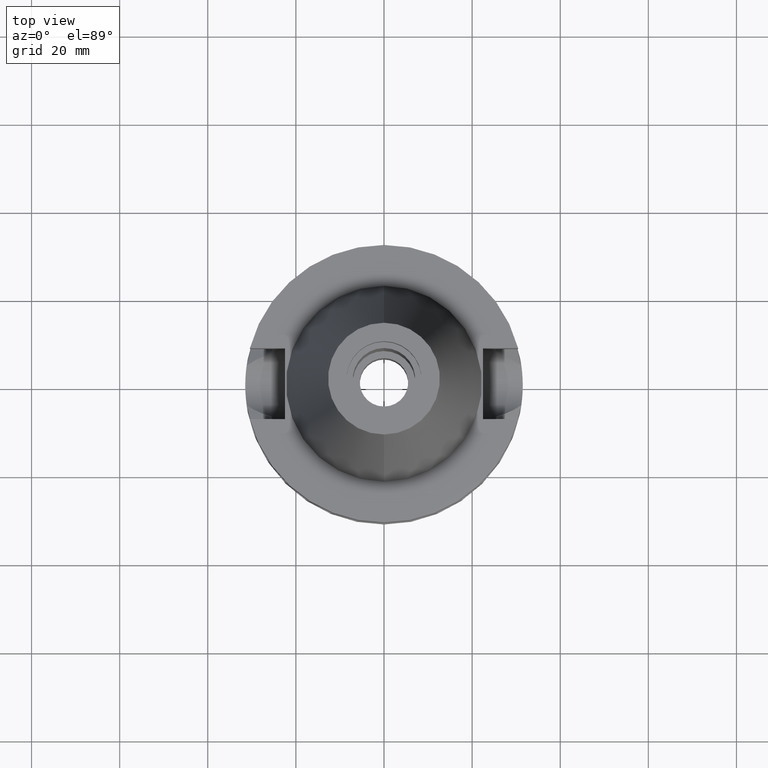
[diagram: clean part render]
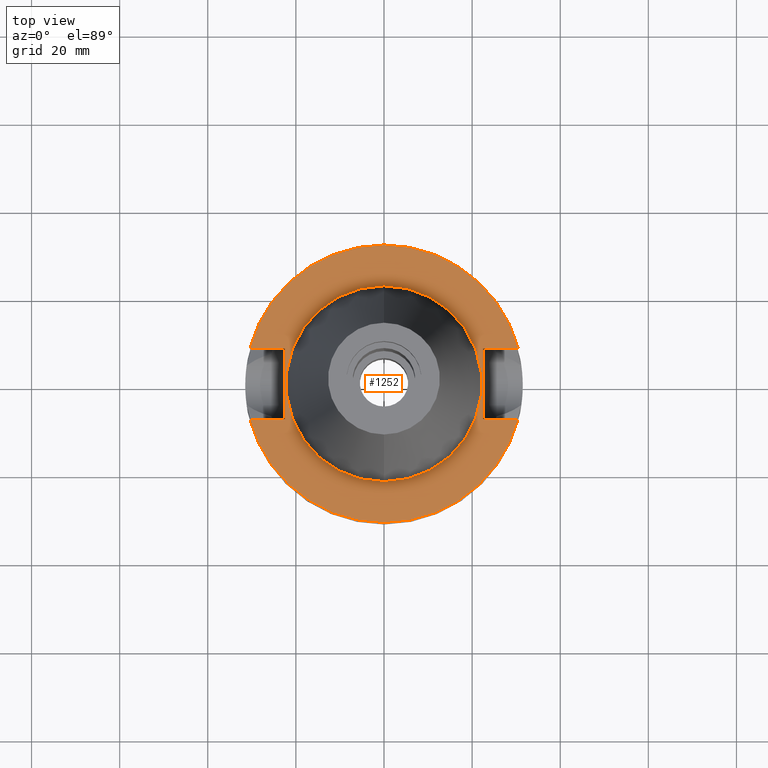
[diagram: same view with one face highlighted and labeled with its STEP entity id]
A machine part, top view. The second image highlights one B-rep face of the part: STEP entity #1252.
In plain terms, the highlighted planar face has unit normal (0, 0, -1).
Its self-contained STEP definition (entity closure, byte-faithful):
#94=DIRECTION('',(0.E0,1.E0,0.E0));
#95=VECTOR('',#94,1.61E1);
#96=CARTESIAN_POINT('',(-2.25E1,-8.05E0,-1.E0));
#97=LINE('',#96,#95);
#101=DIRECTION('',(-1.E0,-3.550916904668E-14,0.E0));
#102=VECTOR('',#101,7.954022722788E0);
#103=CARTESIAN_POINT('',(-2.25E1,8.05E0,-1.E0));
#104=LINE('',#103,#102);
#108=CARTESIAN_POINT('',(0.E0,2.111352314070E-14,-1.E0));
#109=DIRECTION('',(0.E0,0.E0,-1.E0));
#110=DIRECTION('',(-9.667943721520E-1,2.555555555556E-1,0.E0));
#111=AXIS2_PLACEMENT_3D('',#108,#109,#110);
#116=CARTESIAN_POINT('',(0.E0,2.111352314070E-14,-1.E0));
#117=DIRECTION('',(0.E0,0.E0,-1.E0));
#118=DIRECTION('',(0.E0,1.E0,0.E0));
#119=AXIS2_PLACEMENT_3D('',#116,#117,#118);
#124=DIRECTION('',(0.E0,-1.E0,0.E0));
#125=VECTOR('',#124,1.61E1);
#126=CARTESIAN_POINT('',(2.25E1,8.05E0,-1.E0));
#127=LINE('',#126,#125);
#131=DIRECTION('',(1.E0,3.573249715390E-14,0.E0));
#132=VECTOR('',#131,7.954022722788E0);
#133=CARTESIAN_POINT('',(2.25E1,-8.05E0,-1.E0));
#134=LINE('',#133,#132);
#138=CARTESIAN_POINT('',(0.E0,2.111352314070E-14,-1.E0));
#139=DIRECTION('',(0.E0,0.E0,-1.E0));
#140=DIRECTION('',(9.667943721520E-1,-2.555555555556E-1,0.E0));
#141=AXIS2_PLACEMENT_3D('',#138,#139,#140);
#146=CARTESIAN_POINT('',(0.E0,2.111352314070E-14,-1.E0));
#147=DIRECTION('',(0.E0,0.E0,-1.E0));
#148=DIRECTION('',(0.E0,-1.E0,0.E0));
#149=AXIS2_PLACEMENT_3D('',#146,#147,#148);
#154=CARTESIAN_POINT('',(0.E0,2.111352314070E-14,-1.E0));
#155=DIRECTION('',(0.E0,0.E0,1.E0));
#156=DIRECTION('',(0.E0,-1.E0,0.E0));
#157=AXIS2_PLACEMENT_3D('',#154,#155,#156);
#162=CARTESIAN_POINT('',(0.E0,2.111352314070E-14,-1.E0));
#163=DIRECTION('',(0.E0,0.E0,1.E0));
#164=DIRECTION('',(0.E0,1.E0,0.E0));
#165=AXIS2_PLACEMENT_3D('',#162,#163,#164);
#200=DIRECTION('',(-1.E0,3.550916904668E-14,0.E0));
#201=VECTOR('',#200,7.954022722788E0);
#202=CARTESIAN_POINT('',(-2.25E1,-8.05E0,-1.E0));
#203=LINE('',#202,#201);
#337=DIRECTION('',(1.E0,-3.506251283226E-14,0.E0));
#338=VECTOR('',#337,7.954022722788E0);
#339=CARTESIAN_POINT('',(2.25E1,8.05E0,-1.E0));
#340=LINE('',#339,#338);
#1109=CARTESIAN_POINT('',(-2.25E1,-8.05E0,-1.E0));
#1110=VERTEX_POINT('',#1109);
#1111=CARTESIAN_POINT('',(-3.045402272279E1,-8.05E0,-1.E0));
#1112=VERTEX_POINT('',#1111);
#1115=CARTESIAN_POINT('',(-2.25E1,8.05E0,-1.E0));
#1116=VERTEX_POINT('',#1115);
#1117=CARTESIAN_POINT('',(-3.045402272279E1,8.05E0,-1.E0));
#1118=VERTEX_POINT('',#1117);
#1119=CARTESIAN_POINT('',(-3.317447654708E-14,3.15E1,-1.E0));
#1120=CARTESIAN_POINT('',(3.045402272279E1,8.05E0,-1.E0));
#1121=VERTEX_POINT('',#1119);
#1122=VERTEX_POINT('',#1120);
#1123=CARTESIAN_POINT('',(2.25E1,8.05E0,-1.E0));
#1124=VERTEX_POINT('',#1123);
#1125=CARTESIAN_POINT('',(2.25E1,-8.05E0,-1.E0));
#1126=VERTEX_POINT('',#1125);
#1127=CARTESIAN_POINT('',(3.045402272279E1,-8.05E0,-1.E0));
#1128=VERTEX_POINT('',#1127);
#1129=CARTESIAN_POINT('',(3.317447654708E-14,-3.15E1,-1.E0));
#1130=VERTEX_POINT('',#1129);
#1131=CARTESIAN_POINT('',(0.E0,-2.2225E1,-1.E0));
#1132=CARTESIAN_POINT('',(0.E0,2.2225E1,-1.E0));
#1133=VERTEX_POINT('',#1131);
#1134=VERTEX_POINT('',#1132);
#1221=CARTESIAN_POINT('',(0.E0,1.212400331156E-14,-1.E0));
#1222=DIRECTION('',(0.E0,0.E0,-1.E0));
#1223=DIRECTION('',(0.E0,-1.E0,0.E0));
#1224=AXIS2_PLACEMENT_3D('',#1221,#1222,#1223);
#1225=PLANE('',#1224);
#1227=ORIENTED_EDGE('',*,*,#1226,.T.);
#1229=ORIENTED_EDGE('',*,*,#1228,.T.);
#1231=ORIENTED_EDGE('',*,*,#1230,.T.);
#1233=ORIENTED_EDGE('',*,*,#1232,.T.);
#1235=ORIENTED_EDGE('',*,*,#1234,.F.);
#1237=ORIENTED_EDGE('',*,*,#1236,.T.);
#1239=ORIENTED_EDGE('',*,*,#1238,.T.);
#1241=ORIENTED_EDGE('',*,*,#1240,.T.);
#1243=ORIENTED_EDGE('',*,*,#1242,.T.);
#1245=ORIENTED_EDGE('',*,*,#1244,.F.);
#1246=EDGE_LOOP('',(#1227,#1229,#1231,#1233,#1235,#1237,#1239,#1241,#1243,
#1245));
#1247=FACE_OUTER_BOUND('',#1246,.F.);
#1248=ORIENTED_EDGE('',*,*,#1200,.T.);
#1249=ORIENTED_EDGE('',*,*,#1216,.T.);
#1250=EDGE_LOOP('',(#1248,#1249));
#1251=FACE_BOUND('',#1250,.F.);
#112=CIRCLE('',#111,3.15E1);
#120=CIRCLE('',#119,3.15E1);
#142=CIRCLE('',#141,3.15E1);
#150=CIRCLE('',#149,3.15E1);
#158=CIRCLE('',#157,2.2225E1);
#166=CIRCLE('',#165,2.2225E1);
#1200=EDGE_CURVE('',#1133,#1134,#158,.T.);
#1216=EDGE_CURVE('',#1134,#1133,#166,.T.);
#1226=EDGE_CURVE('',#1110,#1116,#97,.T.);
#1228=EDGE_CURVE('',#1116,#1118,#104,.T.);
#1230=EDGE_CURVE('',#1118,#1121,#112,.T.);
#1232=EDGE_CURVE('',#1121,#1122,#120,.T.);
#1234=EDGE_CURVE('',#1124,#1122,#340,.T.);
#1236=EDGE_CURVE('',#1124,#1126,#127,.T.);
#1238=EDGE_CURVE('',#1126,#1128,#134,.T.);
#1240=EDGE_CURVE('',#1128,#1130,#142,.T.);
#1242=EDGE_CURVE('',#1130,#1112,#150,.T.);
#1244=EDGE_CURVE('',#1110,#1112,#203,.T.);
#1252=ADVANCED_FACE('',(#1247,#1251),#1225,.F.);